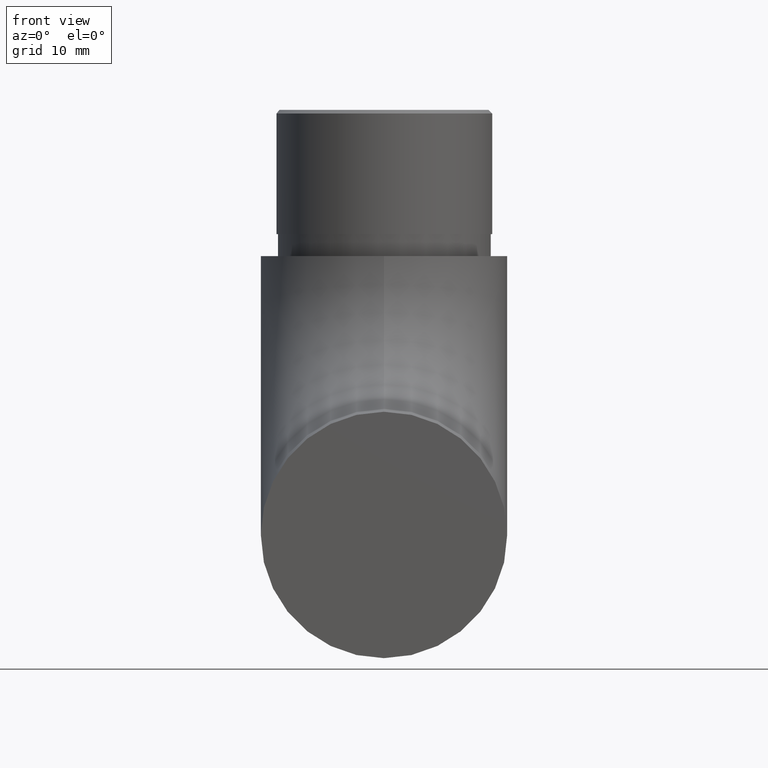
[diagram: clean part render]
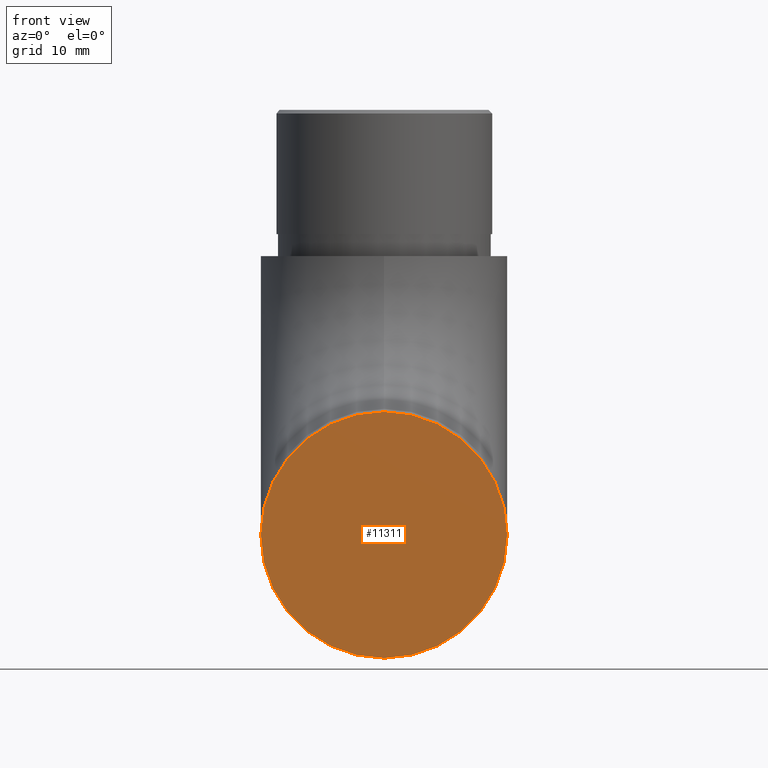
[diagram: same view with one face highlighted and labeled with its STEP entity id]
A machine part, front view. The second image highlights one B-rep face of the part: STEP entity #11311.
In plain terms, the highlighted planar face has unit normal (0, 1, 0).
Its self-contained STEP definition (entity closure, byte-faithful):
#151 = EDGE_LOOP ( 'NONE', ( #9065 ) ) ;
#789 = CARTESIAN_POINT ( 'NONE',  ( 0.0000000000000000000, 0.0000000000000000000, 0.0000000000000000000 ) ) ;
#1751 = DIRECTION ( 'NONE',  ( 0.0000000000000000000, 1.000000000000000000, 0.0000000000000000000 ) ) ;
#1806 = DIRECTION ( 'NONE',  ( 0.0000000000000000000, 1.000000000000000000, 0.0000000000000000000 ) ) ;
#4687 = CARTESIAN_POINT ( 'NONE',  ( 0.0000000000000000000, 0.0000000000000000000, 0.0000000000000000000 ) ) ;
#6255 = EDGE_CURVE ( 'NONE', #10726, #10726, #11229, .T. ) ;
#7783 = AXIS2_PLACEMENT_3D ( 'NONE', #789, #1751, #8165 ) ;
#8120 = PLANE ( 'NONE',  #7783 ) ;
#8165 = DIRECTION ( 'NONE',  ( 0.0000000000000000000, -0.0000000000000000000, 1.000000000000000000 ) ) ;
#9065 = ORIENTED_EDGE ( 'NONE', *, *, #6255, .F. ) ;
#9281 = AXIS2_PLACEMENT_3D ( 'NONE', #4687, #1806, #10069 ) ;
#9921 = CARTESIAN_POINT ( 'NONE',  ( 0.0000000000000000000, 0.0000000000000000000, 16.85000000000000100 ) ) ;
#10069 = DIRECTION ( 'NONE',  ( 0.0000000000000000000, 0.0000000000000000000, 1.000000000000000000 ) ) ;
#10459 = FACE_OUTER_BOUND ( 'NONE', #151, .T. ) ;
#10726 = VERTEX_POINT ( 'NONE', #9921 ) ;
#11229 = CIRCLE ( 'NONE', #9281, 16.85000000000000100 ) ;
#11311 = ADVANCED_FACE ( 'NONE', ( #10459 ), #8120, .F. ) ;